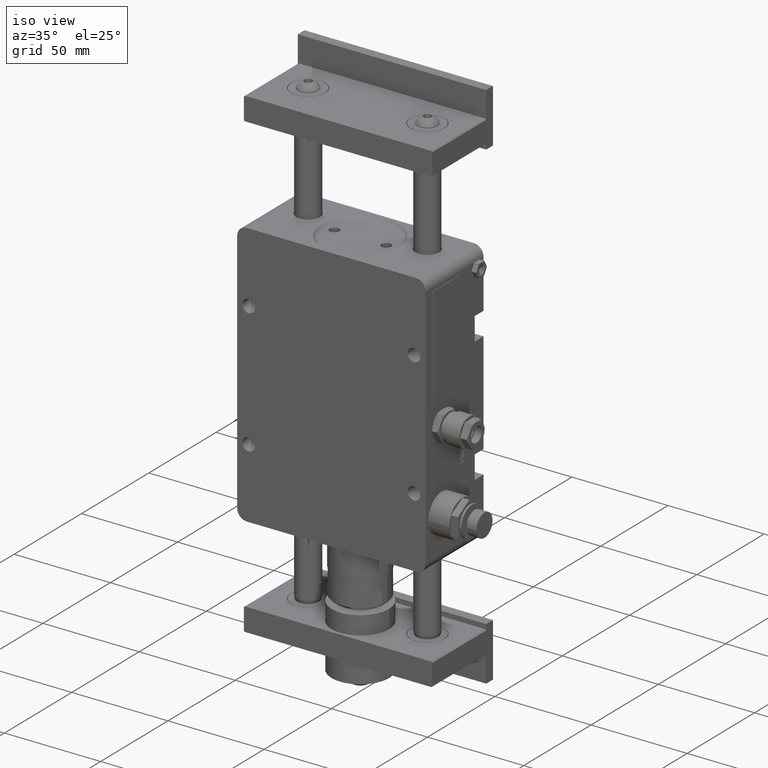
[diagram: clean part render]
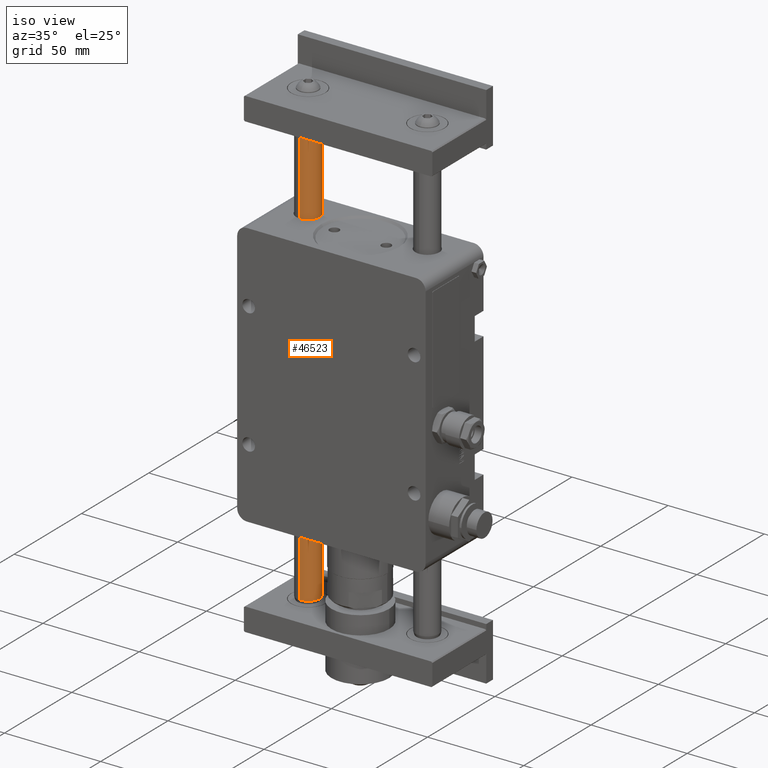
[diagram: same view with one face highlighted and labeled with its STEP entity id]
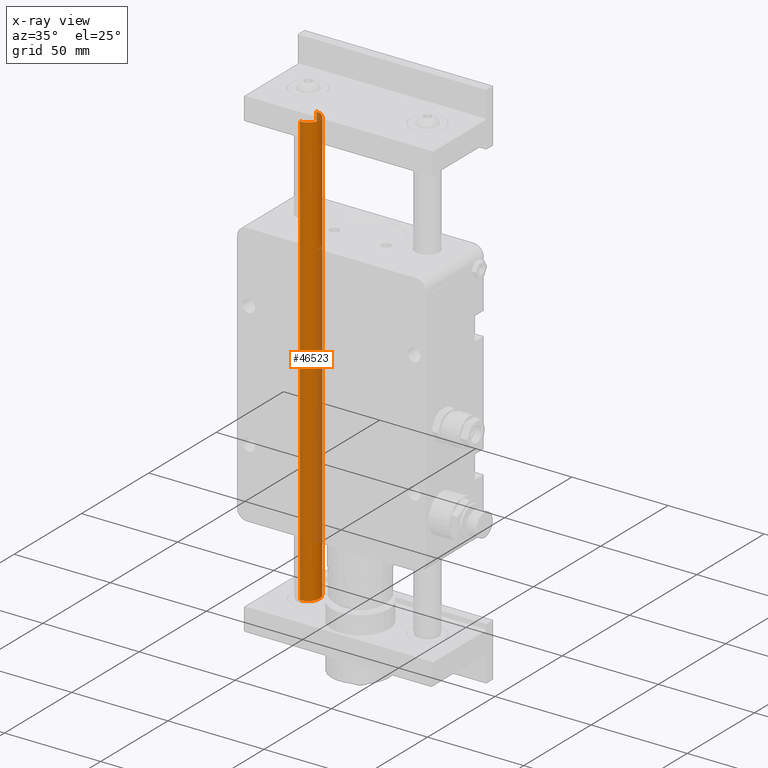
[diagram: x-ray of the same camera — body ghosted, the highlighted face saturated]
A machine part, iso view. The second image highlights one B-rep face of the part: STEP entity #46523.
The next image is the same camera in x-ray: the body ghosted, the highlighted face saturated — about 22% of this face is hidden behind the body in this view.
In plain terms, the highlighted cylindrical surface (edge-blend (fillet) strip) has radius 6 mm, axis along (-0, 0, 1).
Its self-contained STEP definition (entity closure, byte-faithful):
#959 = CIRCLE ( 'NONE', #38643, 5.999999999999998224 ) ;
#1336 = EDGE_LOOP ( 'NONE', ( #9065, #16753, #8938, #41877, #51194, #25252 ) ) ;
#1764 = EDGE_CURVE ( 'NONE', #13295, #33291, #49508, .T. ) ;
#2077 = CARTESIAN_POINT ( 'NONE',  ( -31.00000000000000000, 27.00000000000000000, 71.00000000000000000 ) ) ;
#3540 = CARTESIAN_POINT ( 'NONE',  ( -31.00000000000000000, 21.00000000000000000, -41.50000000000000000 ) ) ;
#3569 = EDGE_CURVE ( 'NONE', #25625, #13627, #30645, .T. ) ;
#3945 = DIRECTION ( 'NONE',  ( -1.548838201544284976E-29, -1.224646799147293796E-16, 1.000000000000000000 ) ) ;
#4143 = DIRECTION ( 'NONE',  ( 3.540822856192149844E-32, 6.123436222361049205E-17, -1.000000000000000000 ) ) ;
#6502 = DIRECTION ( 'NONE',  ( 3.540822856192149844E-32, 6.123436222361049205E-17, -1.000000000000000000 ) ) ;
#6864 = EDGE_CURVE ( 'NONE', #16419, #20809, #959, .T. ) ;
#6987 = AXIS2_PLACEMENT_3D ( 'NONE', #19925, #6502, #32555 ) ;
#8938 = ORIENTED_EDGE ( 'NONE', *, *, #3569, .F. ) ;
#9065 = ORIENTED_EDGE ( 'NONE', *, *, #1764, .F. ) ;
#10283 = CYLINDRICAL_SURFACE ( 'NONE', #27725, 6.000000000000001776 ) ;
#11867 = CARTESIAN_POINT ( 'NONE',  ( -31.00000000000000000, 21.00000000000000000, 71.00000000000000000 ) ) ;
#13295 = VERTEX_POINT ( 'NONE', #3540 ) ;
#13627 = VERTEX_POINT ( 'NONE', #41290 ) ;
#13958 = VECTOR ( 'NONE', #3945, 1000.000000000000000 ) ;
#16419 = VERTEX_POINT ( 'NONE', #35308 ) ;
#16636 = CARTESIAN_POINT ( 'NONE',  ( -31.00000000000000000, 21.00000000000000000, 183.5000000000000000 ) ) ;
#16753 = ORIENTED_EDGE ( 'NONE', *, *, #42462, .F. ) ;
#16939 = CIRCLE ( 'NONE', #37992, 5.999999999999998224 ) ;
#17612 = CIRCLE ( 'NONE', #20225, 5.999999999999998224 ) ;
#19925 = CARTESIAN_POINT ( 'NONE',  ( -31.00000000000000000, 27.00000000000000000, -41.50000000000000000 ) ) ;
#20225 = AXIS2_PLACEMENT_3D ( 'NONE', #29121, #51578, #47479 ) ;
#20619 = CARTESIAN_POINT ( 'NONE',  ( -31.00000000000000000, 27.00000000000000000, 183.5000000000000000 ) ) ;
#20809 = VERTEX_POINT ( 'NONE', #45033 ) ;
#21237 = LINE ( 'NONE', #25604, #13958 ) ;
#25252 = ORIENTED_EDGE ( 'NONE', *, *, #37947, .T. ) ;
#25604 = CARTESIAN_POINT ( 'NONE',  ( -31.00000000000000000, 33.00000000000000000, 71.00000000000000000 ) ) ;
#25625 = VERTEX_POINT ( 'NONE', #51554 ) ;
#27725 = AXIS2_PLACEMENT_3D ( 'NONE', #2077, #52324, #49271 ) ;
#28593 = DIRECTION ( 'NONE',  ( -1.548838201544284976E-29, -1.224646799147293796E-16, 1.000000000000000000 ) ) ;
#29121 = CARTESIAN_POINT ( 'NONE',  ( -31.00000000000000000, 27.00000000000000000, 183.5000000000000000 ) ) ;
#30208 = DIRECTION ( 'NONE',  ( -1.000000000000000000, 5.782411586589358625E-16, 0.000000000000000000 ) ) ;
#30429 = EDGE_CURVE ( 'NONE', #25625, #16419, #21237, .T. ) ;
#30645 = CIRCLE ( 'NONE', #6987, 5.999999999999998224 ) ;
#32555 = DIRECTION ( 'NONE',  ( -1.000000000000000000, 5.782411586589358625E-16, 0.000000000000000000 ) ) ;
#33291 = VERTEX_POINT ( 'NONE', #16636 ) ;
#35308 = CARTESIAN_POINT ( 'NONE',  ( -31.00000000000000000, 33.00000000000000000, 183.5000000000000000 ) ) ;
#37911 = CARTESIAN_POINT ( 'NONE',  ( -31.00000000000000000, 27.00000000000000000, -41.50000000000000000 ) ) ;
#37947 = EDGE_CURVE ( 'NONE', #20809, #33291, #17612, .T. ) ;
#37992 = AXIS2_PLACEMENT_3D ( 'NONE', #37911, #51103, #30208 ) ;
#38643 = AXIS2_PLACEMENT_3D ( 'NONE', #20619, #4143, #50294 ) ;
#39241 = VECTOR ( 'NONE', #28593, 1000.000000000000000 ) ;
#41290 = CARTESIAN_POINT ( 'NONE',  ( -25.00000000000000000, 27.00000000000000000, -41.50000000000000000 ) ) ;
#41877 = ORIENTED_EDGE ( 'NONE', *, *, #30429, .T. ) ;
#42462 = EDGE_CURVE ( 'NONE', #13627, #13295, #16939, .T. ) ;
#45033 = CARTESIAN_POINT ( 'NONE',  ( -25.00000000000000000, 27.00000000000000000, 183.5000000000000000 ) ) ;
#46523 = ADVANCED_FACE ( 'NONE', ( #47933 ), #10283, .T. ) ;
#47479 = DIRECTION ( 'NONE',  ( -1.000000000000000000, 5.782411586589358625E-16, 0.000000000000000000 ) ) ;
#47933 = FACE_OUTER_BOUND ( 'NONE', #1336, .T. ) ;
#49271 = DIRECTION ( 'NONE',  ( 5.782411586589355667E-16, 1.000000000000000000, 0.000000000000000000 ) ) ;
#49508 = LINE ( 'NONE', #11867, #39241 ) ;
#50294 = DIRECTION ( 'NONE',  ( -1.000000000000000000, 5.782411586589358625E-16, 0.000000000000000000 ) ) ;
#51103 = DIRECTION ( 'NONE',  ( 3.540822856192149844E-32, 6.123436222361049205E-17, -1.000000000000000000 ) ) ;
#51194 = ORIENTED_EDGE ( 'NONE', *, *, #6864, .T. ) ;
#51554 = CARTESIAN_POINT ( 'NONE',  ( -31.00000000000000000, 33.00000000000000000, -41.50000000000000000 ) ) ;
#51578 = DIRECTION ( 'NONE',  ( 3.540822856192149844E-32, 6.123436222361049205E-17, -1.000000000000000000 ) ) ;
#52324 = DIRECTION ( 'NONE',  ( -1.541756789703415236E-29, 8.915072324483841122E-45, 1.000000000000000000 ) ) ;